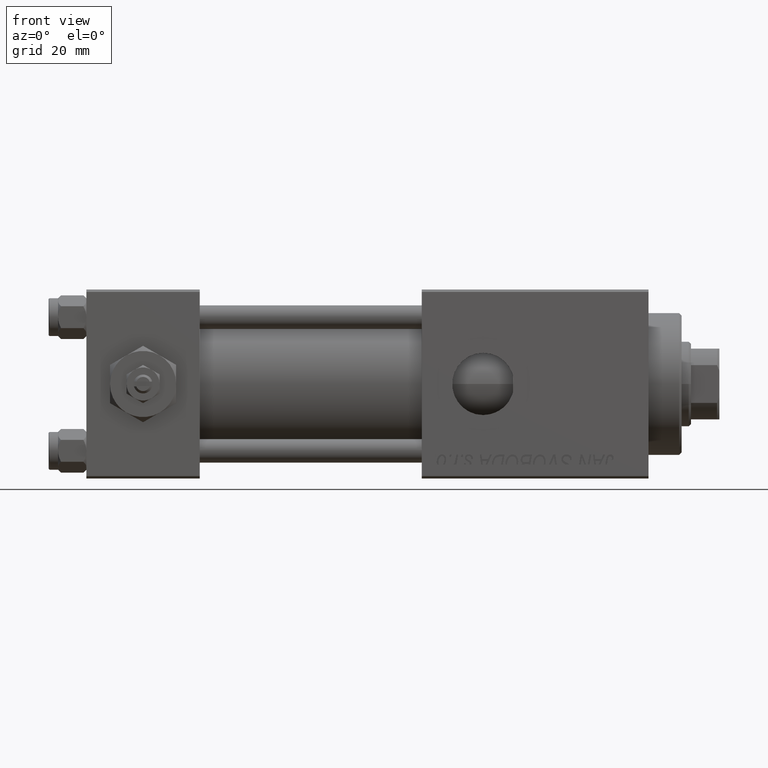
[diagram: clean part render]
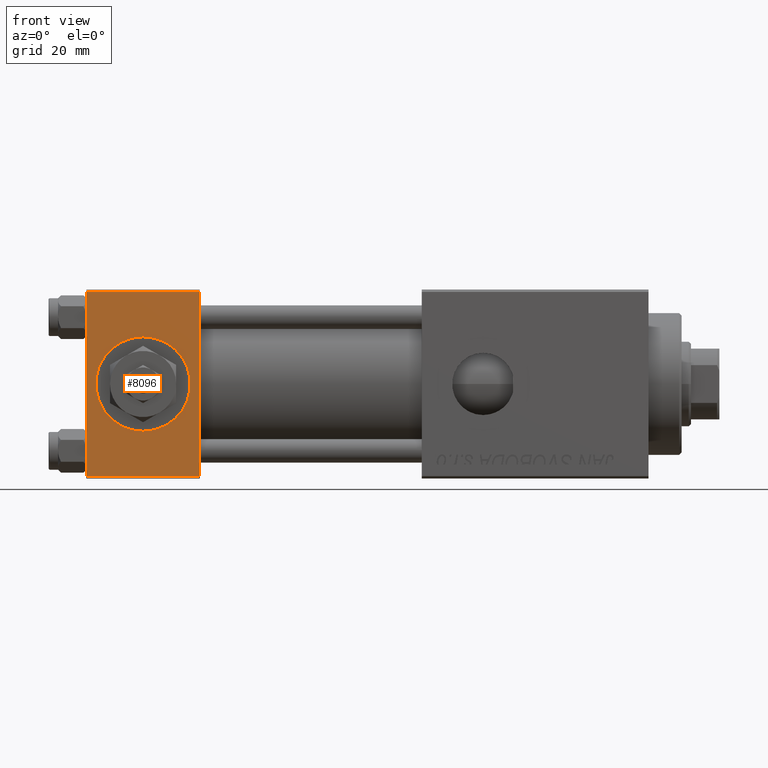
[diagram: same view with one face highlighted and labeled with its STEP entity id]
A machine part, front view. The second image highlights one B-rep face of the part: STEP entity #8096.
In plain terms, the highlighted planar face has unit normal (0, 1, 0).
Its self-contained STEP definition (entity closure, byte-faithful):
#16 = EDGE_LOOP ( 'NONE', ( #20078, #47153 ) ) ;
#2440 = LINE ( 'NONE', #34472, #47158 ) ;
#3761 = DIRECTION ( 'NONE',  ( 0.000000000000000000, -1.000000000000000000, -8.673617379884036705E-17 ) ) ;
#3902 = VERTEX_POINT ( 'NONE', #33178 ) ;
#4741 = CARTESIAN_POINT ( 'NONE',  ( 24.00000000000000000, -20.00000000000000000, -19.49999999999999645 ) ) ;
#8096 = ADVANCED_FACE ( 'NONE', ( #31917, #11447 ), #39515, .F. ) ;
#11135 = DIRECTION ( 'NONE',  ( -1.000000000000000000, 0.000000000000000000, 0.000000000000000000 ) ) ;
#11447 = FACE_OUTER_BOUND ( 'NONE', #47550, .T. ) ;
#11865 = EDGE_CURVE ( 'NONE', #13625, #39474, #27220, .T. ) ;
#11962 = DIRECTION ( 'NONE',  ( 0.000000000000000000, -8.673617379884036705E-17, 1.000000000000000000 ) ) ;
#13240 = DIRECTION ( 'NONE',  ( 0.000000000000000000, 0.000000000000000000, -1.000000000000000000 ) ) ;
#13625 = VERTEX_POINT ( 'NONE', #38803 ) ;
#14518 = VERTEX_POINT ( 'NONE', #4741 ) ;
#17619 = EDGE_CURVE ( 'NONE', #39474, #13625, #25748, .T. ) ;
#18204 = EDGE_CURVE ( 'NONE', #31586, #14518, #38789, .T. ) ;
#18858 = CARTESIAN_POINT ( 'NONE',  ( 24.00000000000000000, -20.00000000000000000, -19.49999999999999645 ) ) ;
#20078 = ORIENTED_EDGE ( 'NONE', *, *, #17619, .F. ) ;
#20848 = CARTESIAN_POINT ( 'NONE',  ( 12.00000000000000000, -20.00000000000000355, -1.734723475976807883E-15 ) ) ;
#22705 = LINE ( 'NONE', #43412, #31944 ) ;
#24218 = DIRECTION ( 'NONE',  ( 0.000000000000000000, 8.673617379884036705E-17, -1.000000000000000000 ) ) ;
#25748 = CIRCLE ( 'NONE', #29951, 9.999999999999996447 ) ;
#26419 = VERTEX_POINT ( 'NONE', #37271 ) ;
#27207 = CARTESIAN_POINT ( 'NONE',  ( 24.00000000000000000, -20.00000000000000355, 19.99999999999998934 ) ) ;
#27220 = CIRCLE ( 'NONE', #50678, 9.999999999999996447 ) ;
#27728 = DIRECTION ( 'NONE',  ( -0.000000000000000000, 1.000000000000000000, 8.673617379884036705E-17 ) ) ;
#29951 = AXIS2_PLACEMENT_3D ( 'NONE', #20848, #49710, #13240 ) ;
#30953 = LINE ( 'NONE', #34902, #48636 ) ;
#31586 = VERTEX_POINT ( 'NONE', #40142 ) ;
#31917 = FACE_BOUND ( 'NONE', #16, .T. ) ;
#31944 = VECTOR ( 'NONE', #11135, 1000.000000000000000 ) ;
#32637 = CARTESIAN_POINT ( 'NONE',  ( 12.00000000000000000, -20.00000000000000355, -1.734723475976807883E-15 ) ) ;
#32982 = ORIENTED_EDGE ( 'NONE', *, *, #18204, .T. ) ;
#33178 = CARTESIAN_POINT ( 'NONE',  ( 24.00000000000000000, -20.00000000000000355, 19.49999999999998224 ) ) ;
#34472 = CARTESIAN_POINT ( 'NONE',  ( 24.00000000000000000, -20.00000000000000355, 19.99999999999998934 ) ) ;
#34902 = CARTESIAN_POINT ( 'NONE',  ( 0.000000000000000000, -20.00000000000000355, 19.99999999999998934 ) ) ;
#37271 = CARTESIAN_POINT ( 'NONE',  ( 0.000000000000000000, -20.00000000000000355, 19.49999999999998224 ) ) ;
#37448 = ORIENTED_EDGE ( 'NONE', *, *, #45000, .F. ) ;
#37514 = ORIENTED_EDGE ( 'NONE', *, *, #42025, .T. ) ;
#38789 = LINE ( 'NONE', #18858, #51756 ) ;
#38803 = CARTESIAN_POINT ( 'NONE',  ( 12.00000000000000178, -20.00000000000000355, 9.999999999999994671 ) ) ;
#39474 = VERTEX_POINT ( 'NONE', #40177 ) ;
#39515 = PLANE ( 'NONE',  #49876 ) ;
#40142 = CARTESIAN_POINT ( 'NONE',  ( 0.000000000000000000, -20.00000000000000000, -19.49999999999999645 ) ) ;
#40177 = CARTESIAN_POINT ( 'NONE',  ( 12.00000000000000000, -20.00000000000000355, -9.999999999999998224 ) ) ;
#40475 = EDGE_CURVE ( 'NONE', #26419, #31586, #30953, .T. ) ;
#42025 = EDGE_CURVE ( 'NONE', #3902, #26419, #22705, .T. ) ;
#43412 = CARTESIAN_POINT ( 'NONE',  ( 24.00000000000000000, -20.00000000000000355, 19.49999999999998224 ) ) ;
#43754 = DIRECTION ( 'NONE',  ( 1.000000000000000000, 0.000000000000000000, 0.000000000000000000 ) ) ;
#43917 = DIRECTION ( 'NONE',  ( 0.000000000000000000, 0.000000000000000000, -1.000000000000000000 ) ) ;
#45000 = EDGE_CURVE ( 'NONE', #3902, #14518, #2440, .T. ) ;
#47153 = ORIENTED_EDGE ( 'NONE', *, *, #11865, .F. ) ;
#47158 = VECTOR ( 'NONE', #24218, 1000.000000000000000 ) ;
#47495 = DIRECTION ( 'NONE',  ( 0.000000000000000000, 8.673617379884036705E-17, -1.000000000000000000 ) ) ;
#47550 = EDGE_LOOP ( 'NONE', ( #51683, #32982, #37448, #37514 ) ) ;
#48636 = VECTOR ( 'NONE', #47495, 1000.000000000000000 ) ;
#49710 = DIRECTION ( 'NONE',  ( 0.000000000000000000, -1.000000000000000000, -8.673617379884036705E-17 ) ) ;
#49876 = AXIS2_PLACEMENT_3D ( 'NONE', #27207, #27728, #11962 ) ;
#50678 = AXIS2_PLACEMENT_3D ( 'NONE', #32637, #3761, #43917 ) ;
#51683 = ORIENTED_EDGE ( 'NONE', *, *, #40475, .T. ) ;
#51756 = VECTOR ( 'NONE', #43754, 1000.000000000000000 ) ;